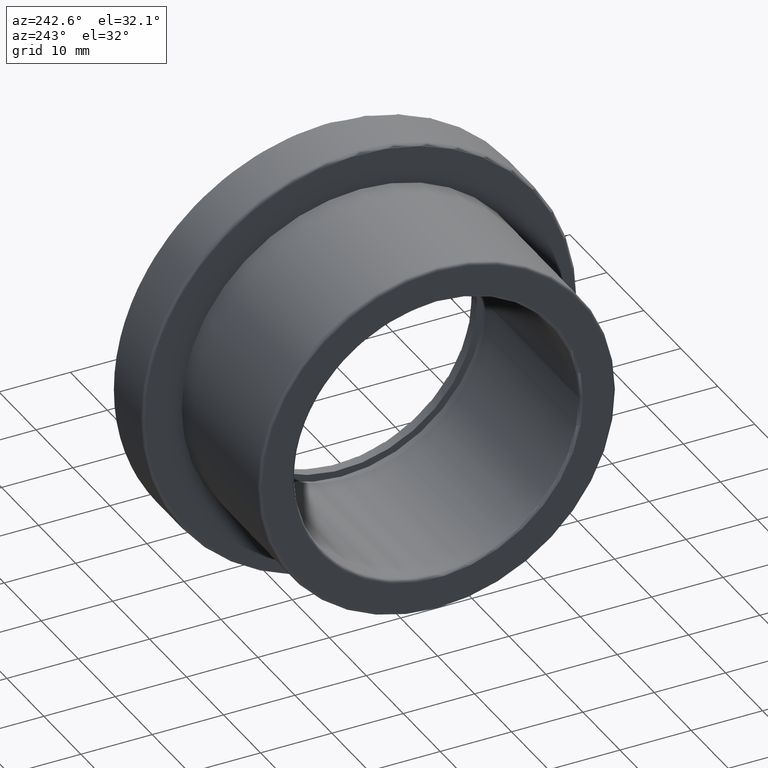
[diagram: clean part render]
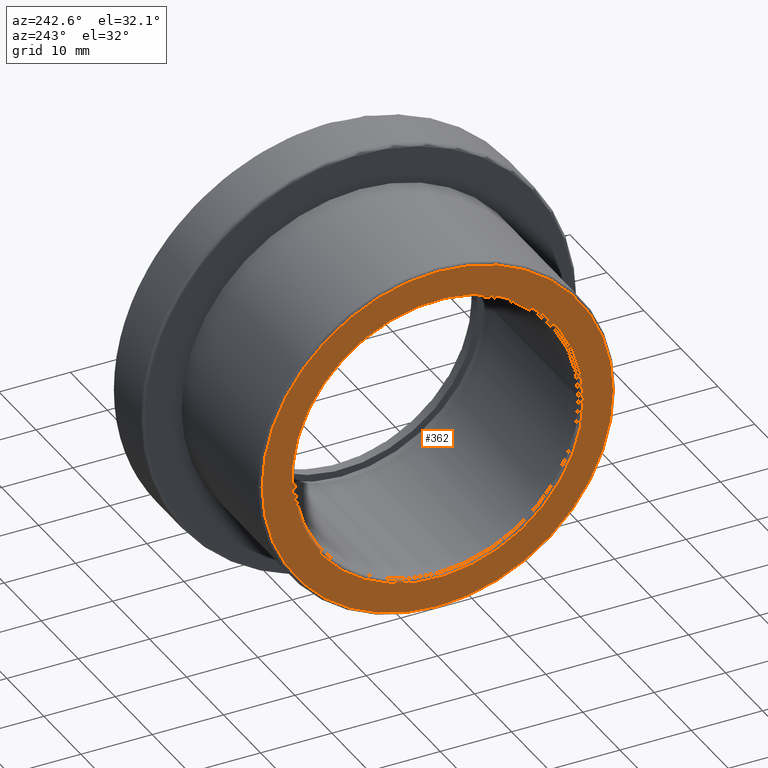
[diagram: same view with one face highlighted and labeled with its STEP entity id]
A machine part, auxiliary view. The second image highlights one B-rep face of the part: STEP entity #362.
In plain terms, the highlighted planar face has unit normal (-1, 0, 0).
Its self-contained STEP definition (entity closure, byte-faithful):
#29=PLANE('',#417);
#50=FACE_BOUND('',#134,.T.);
#83=FACE_OUTER_BOUND('',#133,.T.);
#133=EDGE_LOOP('',(#298));
#134=EDGE_LOOP('',(#299));
#183=CIRCLE('',#415,20.4);
#185=CIRCLE('',#418,24.6);
#216=VERTEX_POINT('',#634);
#218=VERTEX_POINT('',#639);
#249=EDGE_CURVE('',#216,#216,#183,.T.);
#251=EDGE_CURVE('',#218,#218,#185,.T.);
#298=ORIENTED_EDGE('',*,*,#251,.F.);
#299=ORIENTED_EDGE('',*,*,#249,.F.);
#362=ADVANCED_FACE('',(#83,#50),#29,.T.);
#415=AXIS2_PLACEMENT_3D('',#635,#518,#519);
#417=AXIS2_PLACEMENT_3D('',#638,#522,#523);
#418=AXIS2_PLACEMENT_3D('',#640,#524,#525);
#518=DIRECTION('center_axis',(-1.,0.,0.));
#519=DIRECTION('ref_axis',(0.,1.,6.12323399573677E-17));
#522=DIRECTION('center_axis',(-1.,0.,0.));
#523=DIRECTION('ref_axis',(0.,0.,1.));
#524=DIRECTION('center_axis',(1.,0.,0.));
#525=DIRECTION('ref_axis',(0.,1.,6.12323399573676E-17));
#634=CARTESIAN_POINT('',(0.,-20.4,1.2491397351303E-15));
#635=CARTESIAN_POINT('Origin',(0.,0.,0.));
#638=CARTESIAN_POINT('Origin',(0.,-20.,0.));
#639=CARTESIAN_POINT('',(0.,-24.6,-4.51894668885373E-15));
#640=CARTESIAN_POINT('Origin',(0.,0.,0.));